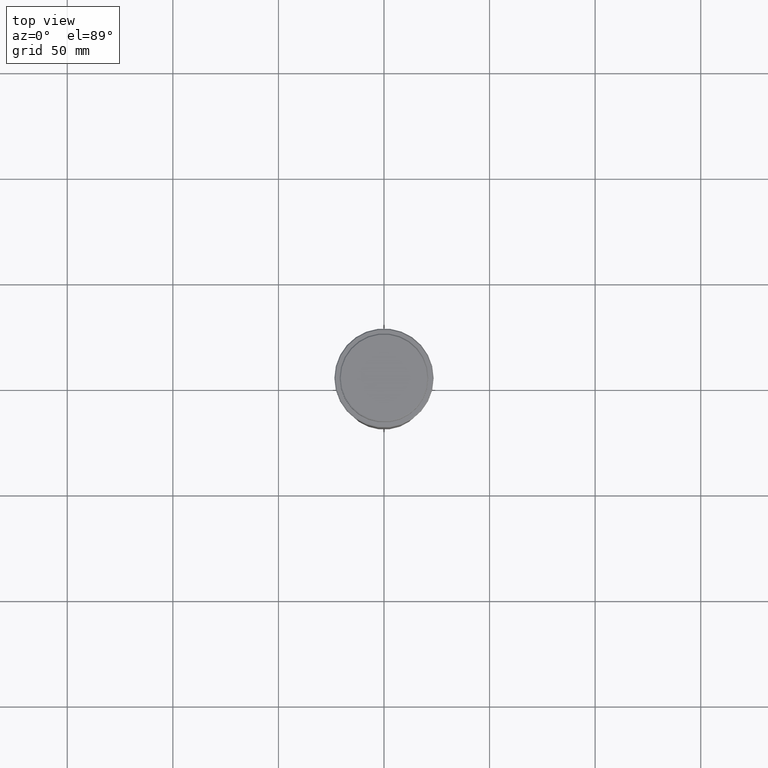
[diagram: clean part render]
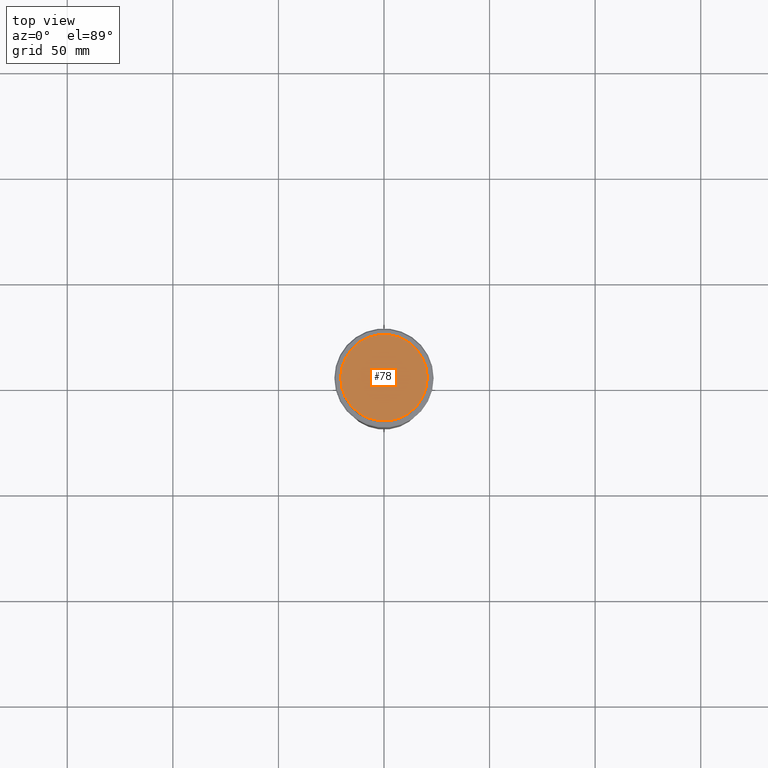
[diagram: same view with one face highlighted and labeled with its STEP entity id]
A machine part, top view. The second image highlights one B-rep face of the part: STEP entity #78.
In plain terms, the highlighted planar face has unit normal (0, -0, 1).
Its self-contained STEP definition (entity closure, byte-faithful):
#24 = CIRCLE ( 'NONE', #492, 20.49999999999996447 ) ;
#78 = ADVANCED_FACE ( 'NONE', ( #797 ), #922, .T. ) ;
#106 = CARTESIAN_POINT ( 'NONE',  ( 0.000000000000000000, 0.000000000000000000, 0.000000000000000000 ) ) ;
#127 = CARTESIAN_POINT ( 'NONE',  ( 0.000000000000000000, 0.000000000000000000, 0.000000000000000000 ) ) ;
#249 = DIRECTION ( 'NONE',  ( 1.000000000000000000, 0.000000000000000000, 0.000000000000000000 ) ) ;
#262 = EDGE_CURVE ( 'NONE', #1272, #1245, #1118, .T. ) ;
#291 = ORIENTED_EDGE ( 'NONE', *, *, #262, .T. ) ;
#458 = DIRECTION ( 'NONE',  ( -0.000000000000000000, -0.000000000000000000, 1.000000000000000000 ) ) ;
#492 = AXIS2_PLACEMENT_3D ( 'NONE', #127, #458, #799 ) ;
#546 = DIRECTION ( 'NONE',  ( -0.000000000000000000, -0.000000000000000000, 1.000000000000000000 ) ) ;
#607 = EDGE_LOOP ( 'NONE', ( #613, #291 ) ) ;
#613 = ORIENTED_EDGE ( 'NONE', *, *, #1359, .T. ) ;
#674 = CARTESIAN_POINT ( 'NONE',  ( 0.000000000000000000, 0.000000000000000000, 0.000000000000000000 ) ) ;
#708 = AXIS2_PLACEMENT_3D ( 'NONE', #106, #546, #746 ) ;
#746 = DIRECTION ( 'NONE',  ( 1.000000000000000000, 0.000000000000000000, 0.000000000000000000 ) ) ;
#797 = FACE_OUTER_BOUND ( 'NONE', #607, .T. ) ;
#799 = DIRECTION ( 'NONE',  ( 1.000000000000000000, 0.000000000000000000, 0.000000000000000000 ) ) ;
#922 = PLANE ( 'NONE',  #1213 ) ;
#944 = CARTESIAN_POINT ( 'NONE',  ( -20.49999999999996447, 0.000000000000000000, 0.000000000000000000 ) ) ;
#1115 = DIRECTION ( 'NONE',  ( 0.000000000000000000, -0.000000000000000000, 1.000000000000000000 ) ) ;
#1118 = CIRCLE ( 'NONE', #708, 20.49999999999996447 ) ;
#1213 = AXIS2_PLACEMENT_3D ( 'NONE', #674, #1115, #249 ) ;
#1245 = VERTEX_POINT ( 'NONE', #944 ) ;
#1272 = VERTEX_POINT ( 'NONE', #1395 ) ;
#1359 = EDGE_CURVE ( 'NONE', #1245, #1272, #24, .T. ) ;
#1395 = CARTESIAN_POINT ( 'NONE',  ( 20.49999999999996447, 2.541142108230755507E-15, 0.000000000000000000 ) ) ;